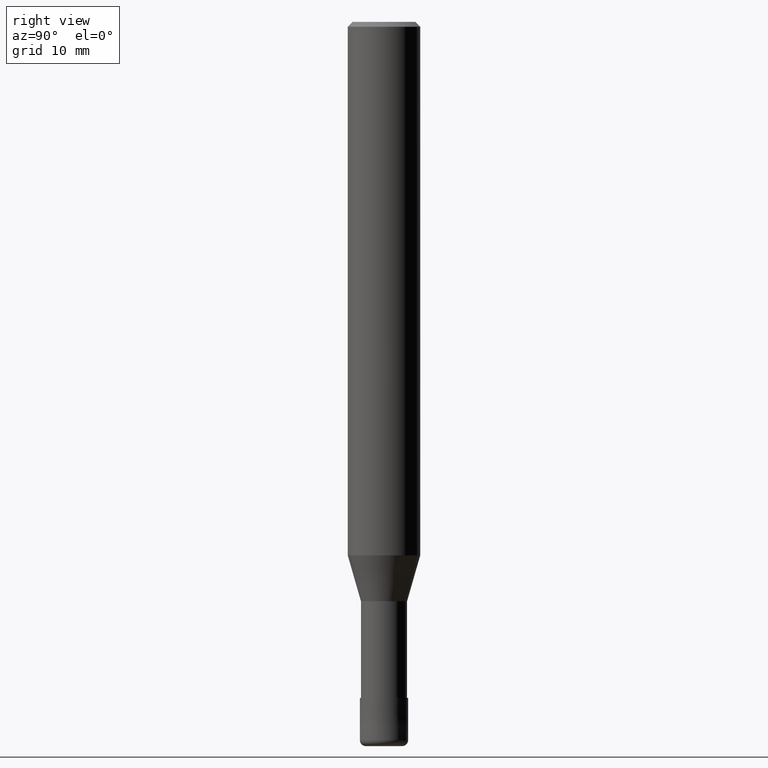
[diagram: clean part render]
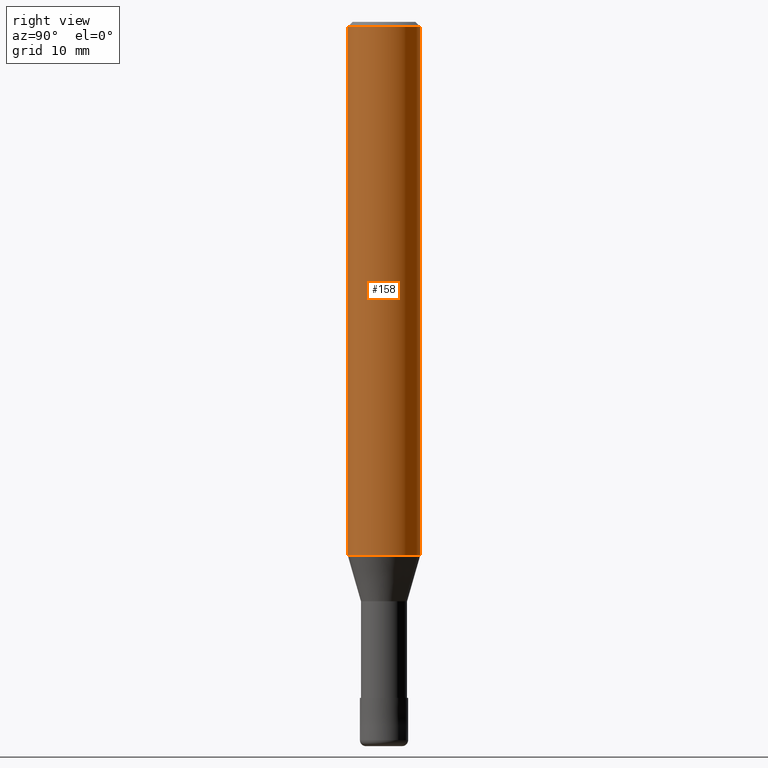
[diagram: same view with one face highlighted and labeled with its STEP entity id]
A machine part, right view. The second image highlights one B-rep face of the part: STEP entity #158.
In plain terms, the highlighted cylindrical surface (edge-blend (fillet) strip) has radius 3 mm, axis along (-0, -0, 1).
Its self-contained STEP definition (entity closure, byte-faithful):
#112=EDGE_CURVE('',#142,#208,#266,.T.);
#142=VERTEX_POINT('',#299);
#158=ADVANCED_FACE('',(#318),#319,.T.);
#168=EDGE_CURVE('',#232,#216,#329,.T.);
#208=VERTEX_POINT('',#373);
#210=EDGE_CURVE('',#216,#208,#375,.T.);
#216=VERTEX_POINT('',#382);
#224=EDGE_CURVE('',#142,#232,#392,.T.);
#232=VERTEX_POINT('',#403);
#266=CIRCLE('',#434,3.0);
#299=CARTESIAN_POINT('',(0.0,3.0,-0.399999999999999));
#318=FACE_OUTER_BOUND('',#493,.T.);
#319=CYLINDRICAL_SURFACE('',#494,3.0);
#329=CIRCLE('',#510,3.0);
#373=CARTESIAN_POINT('',(3.67381906146713E-016,-3.0,-0.399999999999999));
#375=LINE('',#568,#569);
#382=CARTESIAN_POINT('',(3.67381906146713E-016,-3.0,-44.199));
#392=LINE('',#590,#591);
#403=CARTESIAN_POINT('',(0.0,3.0,-44.199));
#434=AXIS2_PLACEMENT_3D('',#626,#627,#628);
#493=EDGE_LOOP('',(#689,#690,#691,#692));
#494=AXIS2_PLACEMENT_3D('',#693,#694,#695);
#510=AXIS2_PLACEMENT_3D('',#706,#707,#708);
#568=CARTESIAN_POINT('',(3.67381906146713E-016,-3.0,-22.2995));
#569=VECTOR('',#761,1.0);
#590=CARTESIAN_POINT('',(-3.67381906146713E-016,3.0,-22.2995));
#591=VECTOR('',#788,1.0);
#626=CARTESIAN_POINT('',(0.0,0.0,-0.399999999999999));
#627=DIRECTION('',(0.0,0.0,-1.0));
#628=DIRECTION('',(0.0,1.0,0.0));
#689=ORIENTED_EDGE('',*,*,#224,.F.);
#690=ORIENTED_EDGE('',*,*,#112,.T.);
#691=ORIENTED_EDGE('',*,*,#210,.F.);
#692=ORIENTED_EDGE('',*,*,#168,.F.);
#693=CARTESIAN_POINT('',(0.0,0.0,-22.2995));
#694=DIRECTION('',(-0.0,-0.0,1.0));
#695=DIRECTION('',(0.0,1.0,0.0));
#706=CARTESIAN_POINT('',(0.0,0.0,-44.199));
#707=DIRECTION('',(0.0,0.0,-1.0));
#708=DIRECTION('',(0.0,1.0,0.0));
#761=DIRECTION('',(-0.0,-0.0,1.0));
#788=DIRECTION('',(0.0,0.0,-1.0));